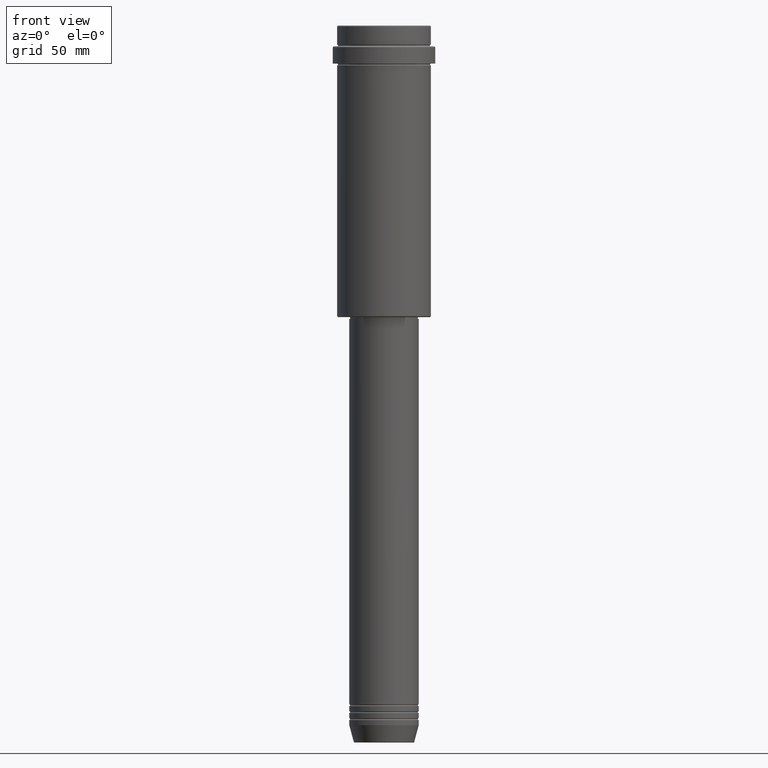
[diagram: clean part render]
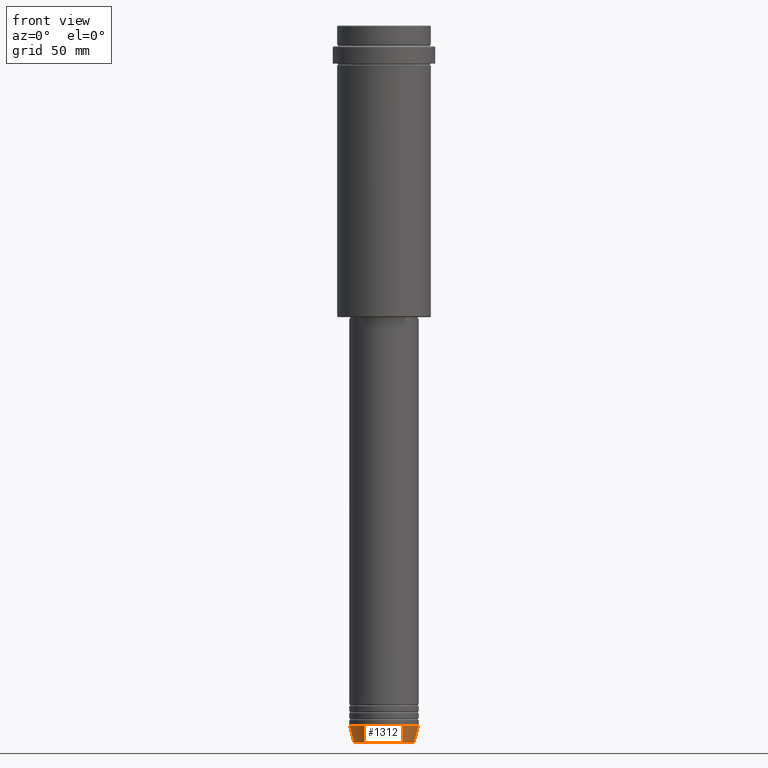
[diagram: same view with one face highlighted and labeled with its STEP entity id]
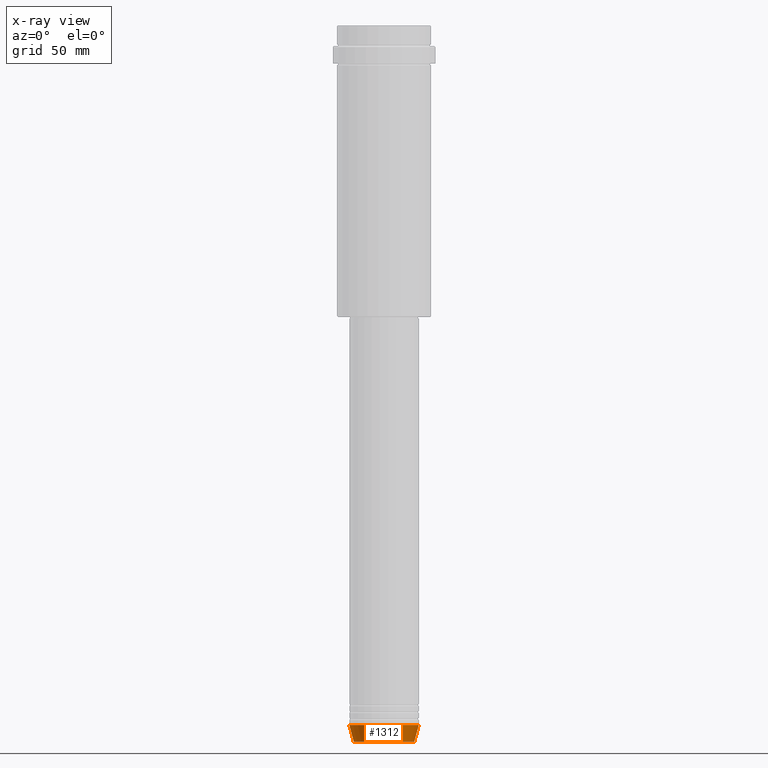
[diagram: x-ray of the same camera — body ghosted, the highlighted face saturated]
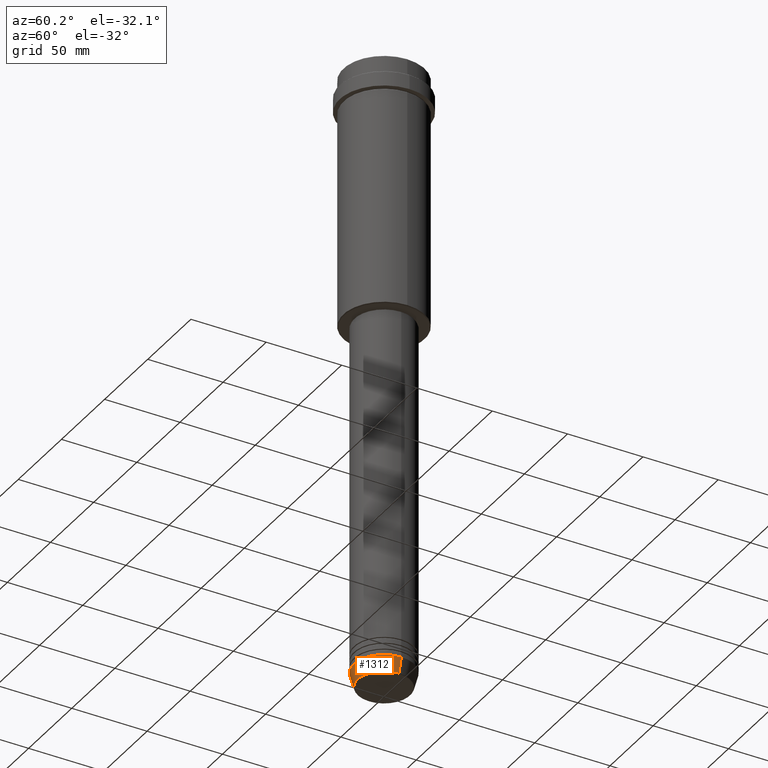
[diagram: same view with one face highlighted and labeled with its STEP entity id]
A machine part, front view. The second image highlights one B-rep face of the part: STEP entity #1312.
The next image is the same camera in x-ray: the body ghosted, the highlighted face saturated — about 0% of this face is hidden behind the body in this view.
A second angle (auxiliary view) of the same face is appended — the face is thin or edge-on in the first view.
In plain terms, the highlighted conical surface has half-angle 15 deg.
Its self-contained STEP definition (entity closure, byte-faithful):
#32 = LINE ( 'NONE', #471, #515 ) ;
#51 = AXIS2_PLACEMENT_3D ( 'NONE', #907, #127, #885 ) ;
#127 = DIRECTION ( 'NONE',  ( -0.000000000000000000, -0.000000000000000000, 1.000000000000000000 ) ) ;
#134 = CARTESIAN_POINT ( 'NONE',  ( 20.00000000000000000, 0.000000000000000000, -402.9999999999999432 ) ) ;
#156 = FACE_OUTER_BOUND ( 'NONE', #1344, .T. ) ;
#160 = ORIENTED_EDGE ( 'NONE', *, *, #1037, .T. ) ;
#169 = CIRCLE ( 'NONE', #51, 20.00000000000000000 ) ;
#200 = CARTESIAN_POINT ( 'NONE',  ( 0.000000000000000000, 0.000000000000000000, -412.6294095225512137 ) ) ;
#217 = AXIS2_PLACEMENT_3D ( 'NONE', #200, #635, #530 ) ;
#253 = EDGE_CURVE ( 'NONE', #355, #1369, #169, .T. ) ;
#257 = DIRECTION ( 'NONE',  ( -0.2588190451025211836, 3.169619151431770488E-17, 0.9659258262890680902 ) ) ;
#324 = EDGE_CURVE ( 'NONE', #1401, #355, #32, .T. ) ;
#355 = VERTEX_POINT ( 'NONE', #505 ) ;
#409 = ORIENTED_EDGE ( 'NONE', *, *, #253, .F. ) ;
#471 = CARTESIAN_POINT ( 'NONE',  ( -20.00000000000000000, 2.449293598294706513E-15, -402.9999999999999432 ) ) ;
#495 = CONICAL_SURFACE ( 'NONE', #1022, 20.00000000000000000, 0.2617993877991499074 ) ;
#500 = ORIENTED_EDGE ( 'NONE', *, *, #512, .T. ) ;
#505 = CARTESIAN_POINT ( 'NONE',  ( -20.00000000000000000, 2.449293598294706513E-15, -402.9999999999999432 ) ) ;
#512 = EDGE_CURVE ( 'NONE', #1401, #1366, #1088, .T. ) ;
#515 = VECTOR ( 'NONE', #257, 1000.000000000000114 ) ;
#530 = DIRECTION ( 'NONE',  ( 1.000000000000000000, 0.000000000000000000, 0.000000000000000000 ) ) ;
#617 = ORIENTED_EDGE ( 'NONE', *, *, #324, .F. ) ;
#635 = DIRECTION ( 'NONE',  ( -0.000000000000000000, -0.000000000000000000, 1.000000000000000000 ) ) ;
#711 = CARTESIAN_POINT ( 'NONE',  ( 0.000000000000000000, 0.000000000000000000, -402.9999999999999432 ) ) ;
#797 = LINE ( 'NONE', #134, #1090 ) ;
#825 = DIRECTION ( 'NONE',  ( -0.000000000000000000, -0.000000000000000000, 1.000000000000000000 ) ) ;
#885 = DIRECTION ( 'NONE',  ( 1.000000000000000000, 0.000000000000000000, 0.000000000000000000 ) ) ;
#907 = CARTESIAN_POINT ( 'NONE',  ( 0.000000000000000000, 0.000000000000000000, -402.9999999999999432 ) ) ;
#1022 = AXIS2_PLACEMENT_3D ( 'NONE', #711, #825, #1116 ) ;
#1037 = EDGE_CURVE ( 'NONE', #1366, #1369, #797, .T. ) ;
#1088 = CIRCLE ( 'NONE', #217, 17.41980749484382684 ) ;
#1090 = VECTOR ( 'NONE', #1410, 1000.000000000000114 ) ;
#1116 = DIRECTION ( 'NONE',  ( 1.000000000000000000, 0.000000000000000000, 0.000000000000000000 ) ) ;
#1263 = CARTESIAN_POINT ( 'NONE',  ( -17.41980749484382684, 2.291302373663531915E-15, -412.6294095225512137 ) ) ;
#1312 = ADVANCED_FACE ( 'NONE', ( #156 ), #495, .T. ) ;
#1340 = CARTESIAN_POINT ( 'NONE',  ( 20.00000000000000000, 0.000000000000000000, -402.9999999999999432 ) ) ;
#1344 = EDGE_LOOP ( 'NONE', ( #617, #500, #160, #409 ) ) ;
#1363 = CARTESIAN_POINT ( 'NONE',  ( 17.41980749484382684, 0.000000000000000000, -412.6294095225512137 ) ) ;
#1366 = VERTEX_POINT ( 'NONE', #1363 ) ;
#1369 = VERTEX_POINT ( 'NONE', #1340 ) ;
#1401 = VERTEX_POINT ( 'NONE', #1263 ) ;
#1410 = DIRECTION ( 'NONE',  ( 0.2588190451025211836, 0.000000000000000000, 0.9659258262890680902 ) ) ;